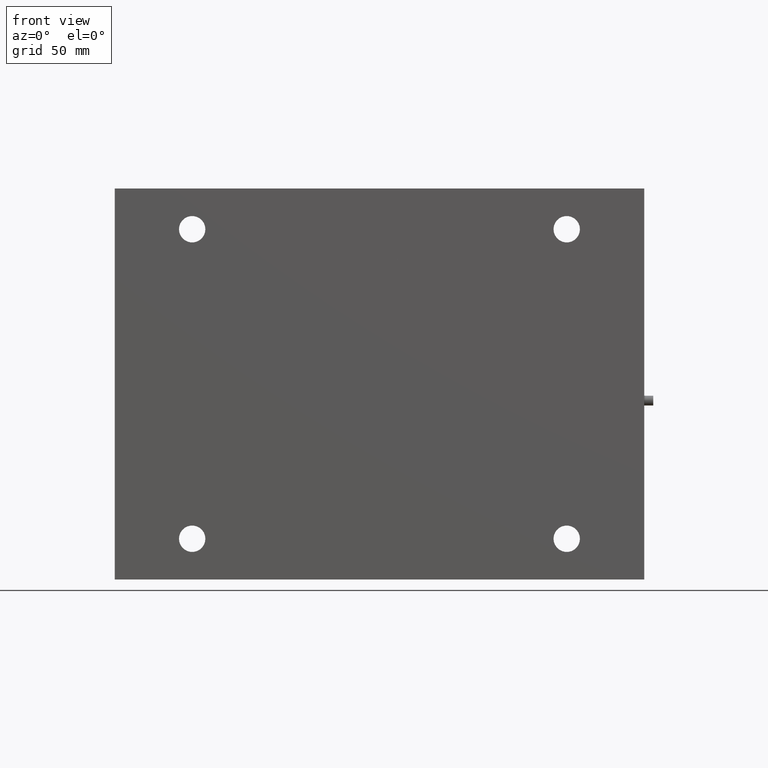
[diagram: clean part render]
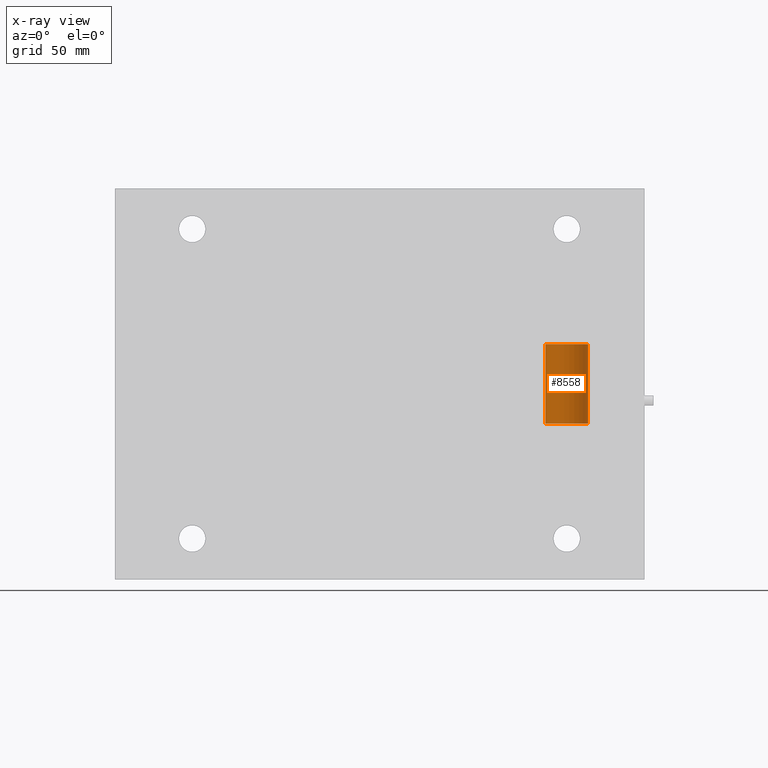
[diagram: x-ray — body ghosted, one internal face saturated and labeled with its STEP entity id]
A machine part, front view, then the same camera in x-ray: the body is ghosted and one INTERNAL B-rep face — a face not visible from any outside direction — is saturated and labeled: STEP entity #8558.
In plain terms, the highlighted cylindrical surface (edge-blend (fillet) strip) has radius 16.65 mm, axis along (-0, -0, -1).
Its self-contained STEP definition (entity closure, byte-faithful):
#1271 = AXIS2_PLACEMENT_3D ( 'NONE', #4970, #9882, #5861 ) ;
#1275 = CARTESIAN_POINT ( 'NONE',  ( 162.6499999999999488, 144.9000000000000057, -31.00000000000000000 ) ) ;
#1401 = VERTEX_POINT ( 'NONE', #1275 ) ;
#2671 = EDGE_CURVE ( 'NONE', #6847, #9970, #4857, .T. ) ;
#3125 = CARTESIAN_POINT ( 'NONE',  ( 129.3499999999999659, 144.9000000000000057, 31.00000000000000000 ) ) ;
#3160 = ORIENTED_EDGE ( 'NONE', *, *, #2671, .T. ) ;
#3210 = EDGE_LOOP ( 'NONE', ( #6637, #3160, #8182, #5052 ) ) ;
#3587 = CARTESIAN_POINT ( 'NONE',  ( 129.3499999999999659, 144.9000000000000057, 31.00000000000000000 ) ) ;
#3919 = CARTESIAN_POINT ( 'NONE',  ( 129.3499999999999659, 144.9000000000000057, -31.00000000000000000 ) ) ;
#3955 = DIRECTION ( 'NONE',  ( -0.000000000000000000, -0.000000000000000000, -1.000000000000000000 ) ) ;
#4066 = EDGE_CURVE ( 'NONE', #6847, #1401, #4586, .T. ) ;
#4134 = DIRECTION ( 'NONE',  ( 1.000000000000000000, 0.000000000000000000, 0.000000000000000000 ) ) ;
#4586 = LINE ( 'NONE', #10661, #9019 ) ;
#4691 = DIRECTION ( 'NONE',  ( -0.000000000000000000, -0.000000000000000000, -1.000000000000000000 ) ) ;
#4805 = CYLINDRICAL_SURFACE ( 'NONE', #10829, 16.64999999999999858 ) ;
#4857 = CIRCLE ( 'NONE', #1271, 16.64999999999999858 ) ;
#4970 = CARTESIAN_POINT ( 'NONE',  ( 145.9999999999999716, 144.9000000000000057, 31.00000000000000000 ) ) ;
#5052 = ORIENTED_EDGE ( 'NONE', *, *, #10278, .F. ) ;
#5495 = EDGE_CURVE ( 'NONE', #9970, #6075, #9864, .T. ) ;
#5861 = DIRECTION ( 'NONE',  ( 1.000000000000000000, 0.000000000000000000, 0.000000000000000000 ) ) ;
#6075 = VERTEX_POINT ( 'NONE', #3919 ) ;
#6637 = ORIENTED_EDGE ( 'NONE', *, *, #4066, .F. ) ;
#6847 = VERTEX_POINT ( 'NONE', #10571 ) ;
#7742 = CIRCLE ( 'NONE', #8473, 16.64999999999999858 ) ;
#8172 = CARTESIAN_POINT ( 'NONE',  ( 145.9999999999999716, 144.9000000000000057, 31.00000000000000000 ) ) ;
#8182 = ORIENTED_EDGE ( 'NONE', *, *, #5495, .T. ) ;
#8229 = DIRECTION ( 'NONE',  ( -1.000000000000000000, 0.000000000000000000, 0.000000000000000000 ) ) ;
#8473 = AXIS2_PLACEMENT_3D ( 'NONE', #10205, #9468, #4134 ) ;
#8558 = ADVANCED_FACE ( 'NONE', ( #10765 ), #4805, .F. ) ;
#9019 = VECTOR ( 'NONE', #9590, 1000.000000000000000 ) ;
#9220 = VECTOR ( 'NONE', #3955, 1000.000000000000000 ) ;
#9468 = DIRECTION ( 'NONE',  ( 0.000000000000000000, 0.000000000000000000, 1.000000000000000000 ) ) ;
#9590 = DIRECTION ( 'NONE',  ( -0.000000000000000000, -0.000000000000000000, -1.000000000000000000 ) ) ;
#9864 = LINE ( 'NONE', #3125, #9220 ) ;
#9882 = DIRECTION ( 'NONE',  ( 0.000000000000000000, 0.000000000000000000, 1.000000000000000000 ) ) ;
#9970 = VERTEX_POINT ( 'NONE', #3587 ) ;
#10205 = CARTESIAN_POINT ( 'NONE',  ( 145.9999999999999716, 144.9000000000000057, -31.00000000000000000 ) ) ;
#10278 = EDGE_CURVE ( 'NONE', #1401, #6075, #7742, .T. ) ;
#10571 = CARTESIAN_POINT ( 'NONE',  ( 162.6499999999999488, 144.9000000000000057, 31.00000000000000000 ) ) ;
#10661 = CARTESIAN_POINT ( 'NONE',  ( 162.6499999999999488, 144.9000000000000057, 31.00000000000000000 ) ) ;
#10765 = FACE_OUTER_BOUND ( 'NONE', #3210, .T. ) ;
#10829 = AXIS2_PLACEMENT_3D ( 'NONE', #8172, #4691, #8229 ) ;